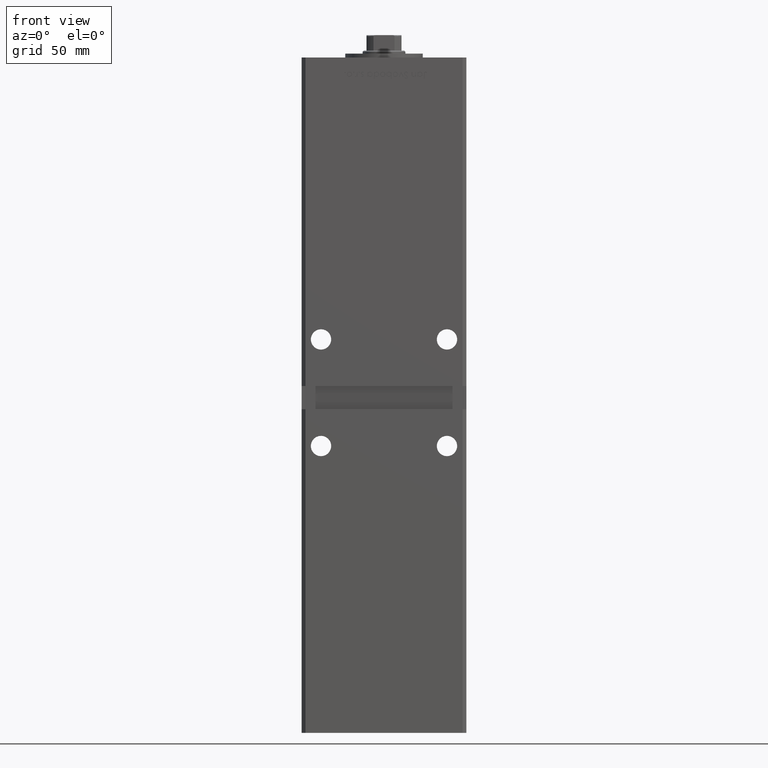
[diagram: clean part render]
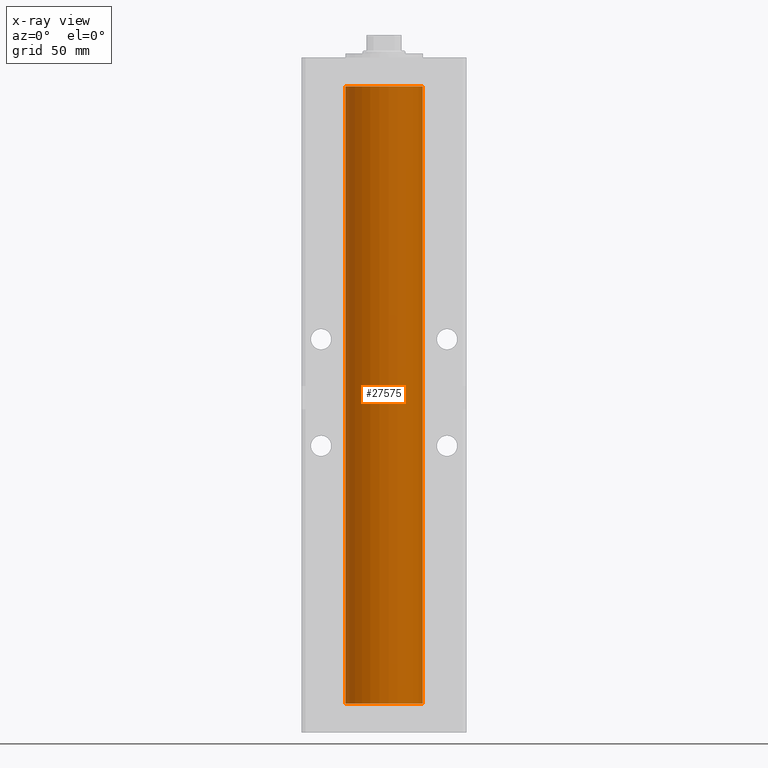
[diagram: x-ray — body ghosted, one internal face saturated and labeled with its STEP entity id]
A machine part, front view, then the same camera in x-ray: the body is ghosted and one INTERNAL B-rep face — a face not visible from any outside direction — is saturated and labeled: STEP entity #27575.
In plain terms, the highlighted cylindrical surface (partial cylindrical patch) has radius 20 mm, axis along (-0, -0, -1).
Its self-contained STEP definition (entity closure, byte-faithful):
#422 = DIRECTION ( 'NONE',  ( -0.000000000000000000, 0.000000000000000000, 1.000000000000000000 ) ) ;
#2597 = EDGE_CURVE ( 'NONE', #16761, #36141, #52590, .T. ) ;
#2696 = LINE ( 'NONE', #47032, #7241 ) ;
#4500 = CARTESIAN_POINT ( 'NONE',  ( -20.00000000000000000, 0.000000000000000000, 318.5000000000000000 ) ) ;
#7241 = VECTOR ( 'NONE', #22834, 1000.000000000000000 ) ;
#9678 = ORIENTED_EDGE ( 'NONE', *, *, #42042, .T. ) ;
#10571 = VECTOR ( 'NONE', #27590, 1000.000000000000000 ) ;
#11976 = DIRECTION ( 'NONE',  ( 1.000000000000000000, 0.000000000000000000, 0.000000000000000000 ) ) ;
#12779 = CARTESIAN_POINT ( 'NONE',  ( 0.000000000000000000, 0.000000000000000000, 318.5000000000000000 ) ) ;
#16761 = VERTEX_POINT ( 'NONE', #4500 ) ;
#19274 = EDGE_LOOP ( 'NONE', ( #40636, #9678, #27866, #23208 ) ) ;
#20573 = AXIS2_PLACEMENT_3D ( 'NONE', #26928, #43319, #39560 ) ;
#20669 = DIRECTION ( 'NONE',  ( -1.000000000000000000, 0.000000000000000000, 0.000000000000000000 ) ) ;
#21463 = DIRECTION ( 'NONE',  ( -0.000000000000000000, -0.000000000000000000, -1.000000000000000000 ) ) ;
#22834 = DIRECTION ( 'NONE',  ( -0.000000000000000000, -0.000000000000000000, -1.000000000000000000 ) ) ;
#23191 = CARTESIAN_POINT ( 'NONE',  ( 20.00000000000000000, 2.449293598294706513E-15, 0.000000000000000000 ) ) ;
#23208 = ORIENTED_EDGE ( 'NONE', *, *, #2597, .F. ) ;
#24995 = EDGE_CURVE ( 'NONE', #36141, #35014, #48042, .T. ) ;
#26928 = CARTESIAN_POINT ( 'NONE',  ( 0.000000000000000000, 0.000000000000000000, 0.000000000000000000 ) ) ;
#27575 = ADVANCED_FACE ( 'NONE', ( #41891 ), #49155, .F. ) ;
#27590 = DIRECTION ( 'NONE',  ( -0.000000000000000000, -0.000000000000000000, -1.000000000000000000 ) ) ;
#27866 = ORIENTED_EDGE ( 'NONE', *, *, #24995, .F. ) ;
#29257 = AXIS2_PLACEMENT_3D ( 'NONE', #29280, #21463, #20669 ) ;
#29280 = CARTESIAN_POINT ( 'NONE',  ( 0.000000000000000000, 0.000000000000000000, 318.5000000000000000 ) ) ;
#31906 = EDGE_CURVE ( 'NONE', #16761, #51953, #49849, .T. ) ;
#35014 = VERTEX_POINT ( 'NONE', #23191 ) ;
#36141 = VERTEX_POINT ( 'NONE', #39297 ) ;
#36453 = CARTESIAN_POINT ( 'NONE',  ( -20.00000000000000000, 0.000000000000000000, 318.5000000000000000 ) ) ;
#39297 = CARTESIAN_POINT ( 'NONE',  ( -20.00000000000000000, 0.000000000000000000, 0.000000000000000000 ) ) ;
#39560 = DIRECTION ( 'NONE',  ( 1.000000000000000000, 0.000000000000000000, 0.000000000000000000 ) ) ;
#40636 = ORIENTED_EDGE ( 'NONE', *, *, #31906, .T. ) ;
#41891 = FACE_OUTER_BOUND ( 'NONE', #19274, .T. ) ;
#42042 = EDGE_CURVE ( 'NONE', #51953, #35014, #2696, .T. ) ;
#43319 = DIRECTION ( 'NONE',  ( -0.000000000000000000, 0.000000000000000000, 1.000000000000000000 ) ) ;
#44689 = AXIS2_PLACEMENT_3D ( 'NONE', #12779, #422, #11976 ) ;
#47032 = CARTESIAN_POINT ( 'NONE',  ( 20.00000000000000000, 2.449293598294706513E-15, 318.5000000000000000 ) ) ;
#48042 = CIRCLE ( 'NONE', #20573, 20.00000000000000000 ) ;
#49155 = CYLINDRICAL_SURFACE ( 'NONE', #29257, 20.00000000000000000 ) ;
#49849 = CIRCLE ( 'NONE', #44689, 20.00000000000000000 ) ;
#51771 = CARTESIAN_POINT ( 'NONE',  ( 20.00000000000000000, 2.449293598294706513E-15, 318.5000000000000000 ) ) ;
#51953 = VERTEX_POINT ( 'NONE', #51771 ) ;
#52590 = LINE ( 'NONE', #36453, #10571 ) ;